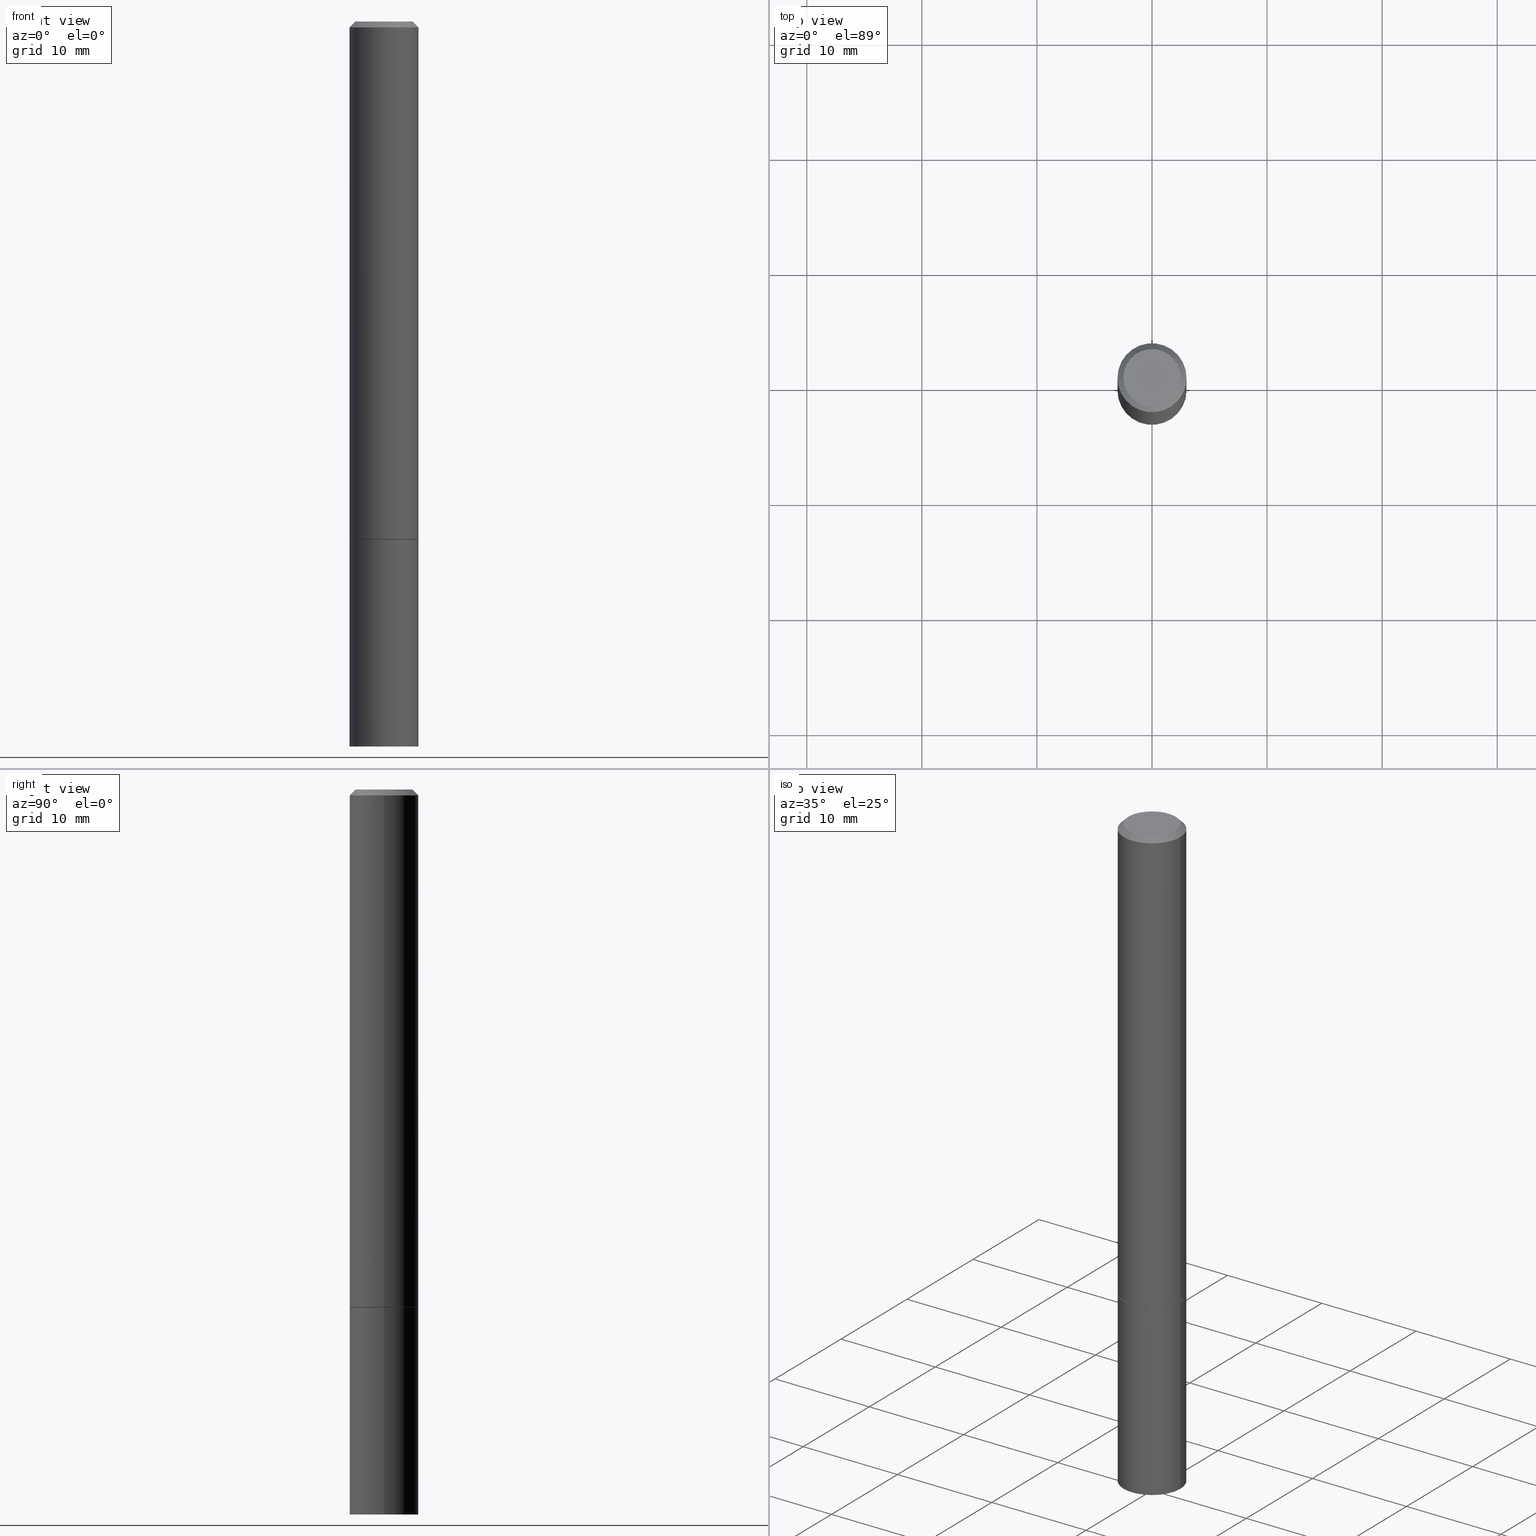
[diagram: canonical four-view strip — front | top / right | iso, engineering-drawing reading convention]
A machine part, canonical four-view strip (front | top / right | iso — engineering-drawing reading convention). The complete STEP part file that produces these views, byte-faithful:
ISO-10303-21;
HEADER;
FILE_DESCRIPTION (( 'STEP AP203' ),
    '1' );
FILE_NAME ('83056.STEP',
    '2024-02-29T22:25:37',
    ( '' ),
    ( '' ),
    'SwSTEP 2.0',
    'SolidWorks 2023',
    '' );
FILE_SCHEMA (( 'CONFIG_CONTROL_DESIGN' ));
ENDSEC;

DATA;
#1 = CARTESIAN_POINT ( 'NONE',  ( 4.332392537037588763E-29, -6.185508339894517569E-15, -1.771600000000000286 ) ) ;
#2 = DIRECTION ( 'NONE',  ( 1.000000000000000000, -6.982962677686265922E-15, 0.000000000000000000 ) ) ;
#3 = ADVANCED_FACE ( 'NONE', ( #36 ), #99, .T. ) ;
#4 = LINE ( 'NONE', #27, #299 ) ;
#5 =( NAMED_UNIT ( * ) SI_UNIT ( $, .STERADIAN. ) SOLID_ANGLE_UNIT ( ) );
#6 = ORIENTED_EDGE ( 'NONE', *, *, #168, .F. ) ;
#7 = CC_DESIGN_PERSON_AND_ORGANIZATION_ASSIGNMENT ( #298, #347, ( #330 ) ) ;
#8 = VECTOR ( 'NONE', #201, 39.37007874015748143 ) ;
#9 = PERSON_AND_ORGANIZATION ( #175, #283 ) ;
#10 = DESIGN_CONTEXT ( 'detailed design', #34, 'design' ) ;
#11 = ORIENTED_EDGE ( 'NONE', *, *, #253, .F. ) ;
#12 = FACE_OUTER_BOUND ( 'NONE', #295, .T. ) ;
#13 = APPROVAL_ROLE ( '' ) ;
#14 = ORIENTED_EDGE ( 'NONE', *, *, #303, .F. ) ;
#15 = EDGE_CURVE ( 'NONE', #124, #181, #101, .T. ) ;
#16 = ORIENTED_EDGE ( 'NONE', *, *, #249, .T. ) ;
#17 = MANIFOLD_SOLID_BREP ( 'Body-Move/Copy2[2]', #358 ) ;
#18 = DIRECTION ( 'NONE',  ( -2.445468806185136597E-29, 3.491481338843145583E-15, 1.000000000000000000 ) ) ;
#19 = DIRECTION ( 'NONE',  ( -2.445468806185136597E-29, 3.491481338843145583E-15, 1.000000000000000000 ) ) ;
#20 = CARTESIAN_POINT ( 'NONE',  ( 4.332392537037588763E-29, -6.185508339894517569E-15, -1.771600000000000286 ) ) ;
#21 = CIRCLE ( 'NONE', #190, 0.1180999999999997746 ) ;
#22 = SHAPE_DEFINITION_REPRESENTATION ( #357, #63 ) ;
#23 = LINE ( 'NONE', #61, #208 ) ;
#24 = CARTESIAN_POINT ( 'NONE',  ( 6.065496279980994755E-29, -8.659921164732655335E-15, -2.480300000000000171 ) ) ;
#25 = AXIS2_PLACEMENT_3D ( 'NONE', #1, #94, #235 ) ;
#26 = DIRECTION ( 'NONE',  ( -2.445468806185136597E-29, 3.491481338843145583E-15, 1.000000000000000000 ) ) ;
#27 = CARTESIAN_POINT ( 'NONE',  ( -0.1180999999999999966, 8.391509709326782957E-16, -5.809262341591043784E-30 ) ) ;
#28 = ORIENTED_EDGE ( 'NONE', *, *, #253, .T. ) ;
#29 = DIRECTION ( 'NONE',  ( -2.438088387897960049E-29, 3.491481338843145188E-15, 1.000000000000000000 ) ) ;
#30 = CARTESIAN_POINT ( 'NONE',  ( 4.890937612370281041E-31, -6.982962677686302702E-17, -0.02000000000000003511 ) ) ;
#31 =( CONVERSION_BASED_UNIT ( 'INCH', #129 ) LENGTH_UNIT ( ) NAMED_UNIT ( #57 ) );
#32 = ORIENTED_EDGE ( 'NONE', *, *, #187, .T. ) ;
#33 = EDGE_CURVE ( 'NONE', #349, #219, #81, .T. ) ;
#34 = APPLICATION_CONTEXT ( 'configuration controlled 3d designs of mechanical parts and assemblies' ) ;
#35 = SECURITY_CLASSIFICATION_LEVEL ( 'unclassified' ) ;
#36 = FACE_OUTER_BOUND ( 'NONE', #272, .T. ) ;
#37 = CIRCLE ( 'NONE', #73, 0.09809999999999981235 ) ;
#38 = VECTOR ( 'NONE', #205, 39.37007874015748143 ) ;
#39 = APPROVAL_STATUS ( 'not_yet_approved' ) ;
#40 = EDGE_LOOP ( 'NONE', ( #127, #351 ) ) ;
#41 = ORIENTED_EDGE ( 'NONE', *, *, #15, .T. ) ;
#42 = APPROVAL_STATUS ( 'not_yet_approved' ) ;
#43 = APPROVAL ( #71, 'UNSPECIFIED' ) ;
#44 = ORIENTED_EDGE ( 'NONE', *, *, #195, .F. ) ;
#45 = CIRCLE ( 'NONE', #25, 0.1180999999999999966 ) ;
#46 = CARTESIAN_POINT ( 'NONE',  ( 0.1180999999999999966, -7.010196232129265043E-15, -1.771600000000000286 ) ) ;
#47 = CIRCLE ( 'NONE', #98, 0.1180999999999999966 ) ;
#48 = DIRECTION ( 'NONE',  ( -1.000000000000000000, 6.982962677686265922E-15, -4.876176775795935793E-29 ) ) ;
#49 = PRODUCT_DEFINITION ( 'UNKNOWN', '', #133, #10 ) ;
#50 = ADVANCED_FACE ( 'NONE', ( #12 ), #333, .T. ) ;
#51 = PLANE ( 'NONE',  #290 ) ;
#52 = FACE_OUTER_BOUND ( 'NONE', #178, .T. ) ;
#53 = AXIS2_PLACEMENT_3D ( 'NONE', #166, #334, #137 ) ;
#54 = AXIS2_PLACEMENT_3D ( 'NONE', #259, #26, #319 ) ;
#55 = ADVANCED_FACE ( 'NONE', ( #277 ), #279, .T. ) ;
#56 = DIRECTION ( 'NONE',  ( -1.000000000000000000, 6.982962677686268288E-15, 0.000000000000000000 ) ) ;
#57 = DIMENSIONAL_EXPONENTS ( 1.000000000000000000, 0.000000000000000000, 0.000000000000000000, 0.000000000000000000, 0.000000000000000000, 0.000000000000000000, 0.000000000000000000 ) ;
#58 = CARTESIAN_POINT ( 'NONE',  ( -0.1180999999999997746, 7.548582654578835839E-16, -0.02000000000000003511 ) ) ;
#59 = AXIS2_PLACEMENT_3D ( 'NONE', #362, #18, #140 ) ;
#60 = CIRCLE ( 'NONE', #66, 0.1180999999999997746 ) ;
#61 = CARTESIAN_POINT ( 'NONE',  ( 0.1170999999999999958, -7.003213269451579029E-15, -1.771600000000000286 ) ) ;
#62 = CARTESIAN_POINT ( 'NONE',  ( 0.09809999999999981235, -7.765346469475326737E-16, -1.707404996039653601E-17 ) ) ;
#63 = ADVANCED_BREP_SHAPE_REPRESENTATION ( '83056', ( #264, #17, #88 ), #309 ) ;
#64 = DIRECTION ( 'NONE',  ( -2.445468806185136597E-29, 3.491481338843145583E-15, 1.000000000000000000 ) ) ;
#65 = ORIENTED_EDGE ( 'NONE', *, *, #316, .F. ) ;
#66 = AXIS2_PLACEMENT_3D ( 'NONE', #261, #64, #2 ) ;
#67 = PERSON_AND_ORGANIZATION_ROLE ( 'creator' ) ;
#68 = ADVANCED_FACE ( 'NONE', ( #52 ), #225, .T. ) ;
#69 = DATE_AND_TIME ( #306, #217 ) ;
#70 = ORIENTED_EDGE ( 'NONE', *, *, #338, .F. ) ;
#71 = APPROVAL_STATUS ( 'not_yet_approved' ) ;
#72 = CARTESIAN_POINT ( 'NONE',  ( 4.175405657340879278E-46, -5.961372681521788801E-32, -1.707404996040164512E-17 ) ) ;
#73 = AXIS2_PLACEMENT_3D ( 'NONE', #359, #221, #254 ) ;
#74 = PERSON_AND_ORGANIZATION_ROLE ( 'classification_officer' ) ;
#75 = UNCERTAINTY_MEASURE_WITH_UNIT (LENGTH_MEASURE( 1.000000000000000082E-05 ), #31, 'distance_accuracy_value', 'NONE');
#76 = ORIENTED_EDGE ( 'NONE', *, *, #249, .F. ) ;
#77 = EDGE_CURVE ( 'NONE', #289, #135, #87, .T. ) ;
#78 = DIRECTION ( 'NONE',  ( 1.000000000000000000, 0.000000000000000000, 0.000000000000000000 ) ) ;
#79 = ORIENTED_EDGE ( 'NONE', *, *, #33, .T. ) ;
#80 = EDGE_LOOP ( 'NONE', ( #109, #148 ) ) ;
#81 = CIRCLE ( 'NONE', #244, 0.09809999999999981235 ) ;
#82 = DIRECTION ( 'NONE',  ( 1.000000000000000000, -6.982962677686266711E-15, 4.876176775795936353E-29 ) ) ;
#83 = CARTESIAN_POINT ( 'NONE',  ( 0.000000000000000000, 0.000000000000000000, 0.000000000000000000 ) ) ;
#84 = DIRECTION ( 'NONE',  ( 2.438088387897960049E-29, -3.491481338843145188E-15, -1.000000000000000000 ) ) ;
#85 = ADVANCED_FACE ( 'NONE', ( #167 ), #312, .T. ) ;
#86 = DIRECTION ( 'NONE',  ( 2.438088387897960049E-29, -3.491481338843145188E-15, -1.000000000000000000 ) ) ;
#87 = CIRCLE ( 'NONE', #59, 0.1180999999999999966 ) ;
#88 = AXIS2_PLACEMENT_3D ( 'NONE', #344, #328, #78 ) ;
#89 = DIRECTION ( 'NONE',  ( -1.000000000000000000, 6.982962677686265922E-15, -4.876176775795935793E-29 ) ) ;
#90 = CARTESIAN_POINT ( 'NONE',  ( -0.1180999999999999966, -6.583563781380907467E-15, -2.480300000000000171 ) ) ;
#91 =( LENGTH_UNIT ( ) NAMED_UNIT ( * ) SI_UNIT ( $, .METRE. ) );
#92 = EDGE_CURVE ( 'NONE', #162, #132, #222, .T. ) ;
#93 = CONICAL_SURFACE ( 'NONE', #54, 0.1170999999999999958, 0.7853981633974141952 ) ;
#94 = DIRECTION ( 'NONE',  ( -2.445468806185136597E-29, 3.491481338843145583E-15, 1.000000000000000000 ) ) ;
#95 = CARTESIAN_POINT ( 'NONE',  ( 4.890937612370281041E-31, -6.982962677686302702E-17, -0.02000000000000003511 ) ) ;
#96 = LINE ( 'NONE', #58, #38 ) ;
#97 = AXIS2_PLACEMENT_3D ( 'NONE', #318, #29, #150 ) ;
#98 = AXIS2_PLACEMENT_3D ( 'NONE', #257, #151, #236 ) ;
#99 = CYLINDRICAL_SURFACE ( 'NONE', #343, 0.1180999999999999966 ) ;
#100 = DATE_TIME_ROLE ( 'creation_date' ) ;
#101 = LINE ( 'NONE', #214, #255 ) ;
#102 =( NAMED_UNIT ( * ) PLANE_ANGLE_UNIT ( ) SI_UNIT ( $, .RADIAN. ) );
#103 = ORIENTED_EDGE ( 'NONE', *, *, #292, .F. ) ;
#104 = EDGE_CURVE ( 'NONE', #135, #132, #251, .T. ) ;
#105 = AXIS2_PLACEMENT_3D ( 'NONE', #20, #310, #311 ) ;
#106 = CC_DESIGN_SECURITY_CLASSIFICATION ( #274, ( #133 ) ) ;
#107 = COORDINATED_UNIVERSAL_TIME_OFFSET ( 5, 0, .BEHIND. ) ;
#108 = EDGE_LOOP ( 'NONE', ( #188, #79 ) ) ;
#109 = ORIENTED_EDGE ( 'NONE', *, *, #195, .T. ) ;
#110 = CARTESIAN_POINT ( 'NONE',  ( 0.1180999999999999966, -7.006704750790422825E-15, -1.770600000000000174 ) ) ;
#111 = CARTESIAN_POINT ( 'NONE',  ( 0.000000000000000000, 0.000000000000000000, 0.000000000000000000 ) ) ;
#112 = DIRECTION ( 'NONE',  ( -2.445468806185136597E-29, 3.491481338843145583E-15, 1.000000000000000000 ) ) ;
#113 = DIRECTION ( 'NONE',  ( 1.000000000000000000, -6.982962677686264344E-15, 0.000000000000000000 ) ) ;
#114 = CC_DESIGN_PERSON_AND_ORGANIZATION_ASSIGNMENT ( #218, #67, ( #49 ) ) ;
#115 = LINE ( 'NONE', #313, #156 ) ;
#116 = VECTOR ( 'NONE', #278, 39.37007874015748143 ) ;
#117 = CARTESIAN_POINT ( 'NONE',  ( 4.890937612370281041E-31, -6.982962677686302702E-17, -0.02000000000000003511 ) ) ;
#118 = EDGE_CURVE ( 'NONE', #355, #220, #266, .T. ) ;
#119 = DIRECTION ( 'NONE',  ( -1.000000000000000000, 6.982962677686265922E-15, -4.876176775795935793E-29 ) ) ;
#120 = CARTESIAN_POINT ( 'NONE',  ( -0.1170999999999999958, -5.348164341971217978E-15, -1.771600000000000286 ) ) ;
#121 = CIRCLE ( 'NONE', #128, 0.1180999999999999966 ) ;
#122 = AXIS2_PLACEMENT_3D ( 'NONE', #117, #315, #126 ) ;
#123 = CARTESIAN_POINT ( 'NONE',  ( 6.850286386810214690E-16, 0.09809999999999981235, -3.510513443207127712E-16 ) ) ;
#124 = VERTEX_POINT ( 'NONE', #110 ) ;
#125 = EDGE_CURVE ( 'NONE', #219, #349, #37, .T. ) ;
#126 = DIRECTION ( 'NONE',  ( -1.000000000000000000, 6.982962677686268288E-15, 0.000000000000000000 ) ) ;
#127 = ORIENTED_EDGE ( 'NONE', *, *, #118, .F. ) ;
#128 = AXIS2_PLACEMENT_3D ( 'NONE', #174, #287, #203 ) ;
#129 = LENGTH_MEASURE_WITH_UNIT ( LENGTH_MEASURE( 0.02539999999999999897 ), #91 );
#130 = ORIENTED_EDGE ( 'NONE', *, *, #212, .F. ) ;
#131 = APPROVAL_DATE_TIME ( #321, #194 ) ;
#132 = VERTEX_POINT ( 'NONE', #46 ) ;
#133 = PRODUCT_DEFINITION_FORMATION_WITH_SPECIFIED_SOURCE ( 'ANY', '', #330, .NOT_KNOWN. ) ;
#134 = CALENDAR_DATE ( 2024, 29, 2 ) ;
#135 = VERTEX_POINT ( 'NONE', #165 ) ;
#136 = EDGE_CURVE ( 'NONE', #220, #355, #202, .T. ) ;
#137 = DIRECTION ( 'NONE',  ( 1.000000000000000000, -6.982962677686264344E-15, 0.000000000000000000 ) ) ;
#138 = AXIS2_PLACEMENT_3D ( 'NONE', #193, #19, #192 ) ;
#139 = LOCAL_TIME ( 17, 25, 37.00000000000000000, #158 ) ;
#140 = DIRECTION ( 'NONE',  ( 1.000000000000000000, -6.982962677686273021E-15, 0.000000000000000000 ) ) ;
#141 = APPROVAL_DATE_TIME ( #350, #43 ) ;
#142 = CARTESIAN_POINT ( 'NONE',  ( 4.332392537037588763E-29, -6.185508339894517569E-15, -1.771600000000000286 ) ) ;
#143 = ADVANCED_FACE ( 'NONE', ( #361 ), #282, .T. ) ;
#144 = PLANE ( 'NONE',  #301 ) ;
#145 = CLOSED_SHELL ( 'NONE', ( #85, #50, #157, #3 ) ) ;
#146 = APPROVAL_PERSON_ORGANIZATION ( #180, #348, #161 ) ;
#147 = CARTESIAN_POINT ( 'NONE',  ( -0.09809999999999981235, 7.199434520694525264E-16, -1.707404996040655701E-17 ) ) ;
#148 = ORIENTED_EDGE ( 'NONE', *, *, #92, .T. ) ;
#149 = DIRECTION ( 'NONE',  ( -2.445468806185136597E-29, 3.491481338843145583E-15, 1.000000000000000000 ) ) ;
#150 = DIRECTION ( 'NONE',  ( 1.000000000000000000, -6.982962677686265922E-15, 4.876176775795935793E-29 ) ) ;
#151 = DIRECTION ( 'NONE',  ( -2.445468806185136597E-29, 3.491481338843145583E-15, 1.000000000000000000 ) ) ;
#152 = APPLICATION_PROTOCOL_DEFINITION ( 'international standard', 'config_control_design', 1994, #228 ) ;
#153 = ORIENTED_EDGE ( 'NONE', *, *, #316, .T. ) ;
#154 = COORDINATED_UNIVERSAL_TIME_OFFSET ( 5, 0, .BEHIND. ) ;
#155 = CARTESIAN_POINT ( 'NONE',  ( 0.000000000000000000, 0.000000000000000000, 0.000000000000000000 ) ) ;
#156 = VECTOR ( 'NONE', #280, 39.37007874015748854 ) ;
#157 = ADVANCED_FACE ( 'NONE', ( #248 ), #51, .F. ) ;
#158 = COORDINATED_UNIVERSAL_TIME_OFFSET ( 5, 0, .BEHIND. ) ;
#159 = DIRECTION ( 'NONE',  ( -2.445468806185136597E-29, 3.491481338843145583E-15, 1.000000000000000000 ) ) ;
#160 = ORIENTED_EDGE ( 'NONE', *, *, #104, .F. ) ;
#161 = APPROVAL_ROLE ( '' ) ;
#162 = VERTEX_POINT ( 'NONE', #198 ) ;
#163 = AXIS2_PLACEMENT_3D ( 'NONE', #336, #84, #89 ) ;
#164 = CONICAL_SURFACE ( 'NONE', #122, 0.1180999999999997746, 0.7853981633974468357 ) ;
#165 = CARTESIAN_POINT ( 'NONE',  ( 0.1180999999999999966, -9.484609056967403598E-15, -2.480300000000000171 ) ) ;
#166 = CARTESIAN_POINT ( 'NONE',  ( 4.332392537037588763E-29, -6.185508339894517569E-15, -1.771600000000000286 ) ) ;
#167 = FACE_OUTER_BOUND ( 'NONE', #231, .T. ) ;
#168 = EDGE_CURVE ( 'NONE', #220, #327, #115, .T. ) ;
#169 = CC_DESIGN_APPROVAL ( #43, ( #274 ) ) ;
#170 = CARTESIAN_POINT ( 'NONE',  ( 0.1180999999999999966, -8.246878922347480654E-16, 5.758764772215000440E-30 ) ) ;
#171 = DIRECTION ( 'NONE',  ( -2.445468806185136597E-29, 3.491481338843145583E-15, 1.000000000000000000 ) ) ;
#172 = FACE_OUTER_BOUND ( 'NONE', #216, .T. ) ;
#173 = CARTESIAN_POINT ( 'NONE',  ( 0.1170999999999999958, -7.003213269451579029E-15, -1.771600000000000286 ) ) ;
#174 = CARTESIAN_POINT ( 'NONE',  ( 4.329947068231403160E-29, -6.182016858555674562E-15, -1.770600000000000174 ) ) ;
#175 = PERSON ( 'UNSPECIFIED', 'UNSPECIFIED', 'UNSPECIFIED', ('UNSPECIFIED'), ('UNSPECIFIED'), ('UNSPECIFIED') ) ;
#176 = FACE_OUTER_BOUND ( 'NONE', #346, .T. ) ;
#177 = CARTESIAN_POINT ( 'NONE',  ( 0.1180999999999997746, -8.800544403136792597E-16, -0.02000000000000003511 ) ) ;
#178 = EDGE_LOOP ( 'NONE', ( #103, #153, #41, #14 ) ) ;
#179 = PERSON_AND_ORGANIZATION_ROLE ( 'design_supplier' ) ;
#180 = PERSON_AND_ORGANIZATION ( #175, #283 ) ;
#181 = VERTEX_POINT ( 'NONE', #227 ) ;
#182 = EDGE_CURVE ( 'NONE', #355, #124, #23, .T. ) ;
#183 = ORIENTED_EDGE ( 'NONE', *, *, #168, .T. ) ;
#184 = CALENDAR_DATE ( 2024, 29, 2 ) ;
#185 = ORIENTED_EDGE ( 'NONE', *, *, #136, .T. ) ;
#186 = PERSON_AND_ORGANIZATION ( #175, #283 ) ;
#187 = EDGE_CURVE ( 'NONE', #124, #327, #121, .T. ) ;
#188 = ORIENTED_EDGE ( 'NONE', *, *, #125, .T. ) ;
#189 = ORIENTED_EDGE ( 'NONE', *, *, #212, .T. ) ;
#190 = AXIS2_PLACEMENT_3D ( 'NONE', #30, #284, #206 ) ;
#191 = LOCAL_TIME ( 17, 25, 37.00000000000000000, #269 ) ;
#192 = DIRECTION ( 'NONE',  ( 1.000000000000000000, -6.982962677686265133E-15, 0.000000000000000000 ) ) ;
#193 = CARTESIAN_POINT ( 'NONE',  ( 4.332392537037588763E-29, -6.185508339894517569E-15, -1.771600000000000286 ) ) ;
#194 = APPROVAL ( #42, 'UNSPECIFIED' ) ;
#195 = EDGE_CURVE ( 'NONE', #132, #162, #45, .T. ) ;
#196 = DIRECTION ( 'NONE',  ( 1.000000000000000000, -6.982962677686266711E-15, 4.876176775795935232E-29 ) ) ;
#197 = AXIS2_PLACEMENT_3D ( 'NONE', #83, #332, #82 ) ;
#198 = CARTESIAN_POINT ( 'NONE',  ( -0.1180999999999999966, -6.583563781380907467E-15, -1.771600000000000286 ) ) ;
#199 = DIRECTION ( 'NONE',  ( -2.445468806185136597E-29, 3.491481338843145583E-15, 1.000000000000000000 ) ) ;
#200 = EDGE_CURVE ( 'NONE', #349, #181, #263, .T. ) ;
#201 = DIRECTION ( 'NONE',  ( -2.445468806185136877E-29, 3.491481338843145188E-15, 1.000000000000000000 ) ) ;
#202 = CIRCLE ( 'NONE', #53, 0.1170999999999999958 ) ;
#203 = DIRECTION ( 'NONE',  ( 1.000000000000000000, -6.982962677686265133E-15, 0.000000000000000000 ) ) ;
#204 = ORIENTED_EDGE ( 'NONE', *, *, #118, .T. ) ;
#205 = DIRECTION ( 'NONE',  ( -0.7071067811865464625, 2.468850131082245622E-15, -0.7071067811865485719 ) ) ;
#206 = DIRECTION ( 'NONE',  ( 1.000000000000000000, -6.982962677686265922E-15, 0.000000000000000000 ) ) ;
#207 = ORIENTED_EDGE ( 'NONE', *, *, #338, .T. ) ;
#208 = VECTOR ( 'NONE', #337, 39.37007874015748854 ) ;
#209 = LOCAL_TIME ( 17, 25, 37.00000000000000000, #239 ) ;
#210 = APPLICATION_PROTOCOL_DEFINITION ( 'international standard', 'config_control_design', 1994, #34 ) ;
#211 = ORIENTED_EDGE ( 'NONE', *, *, #77, .F. ) ;
#212 = EDGE_CURVE ( 'NONE', #289, #162, #4, .T. ) ;
#213 = DATE_TIME_ROLE ( 'classification_date' ) ;
#214 = CARTESIAN_POINT ( 'NONE',  ( 0.1180999999999998995, -8.246878922347473751E-16, 5.758764772214994835E-30 ) ) ;
#215 = DATE_AND_TIME ( #184, #191 ) ;
#216 = EDGE_LOOP ( 'NONE', ( #204, #183, #308, #305 ) ) ;
#217 = LOCAL_TIME ( 17, 25, 37.00000000000000000, #107 ) ;
#218 = PERSON_AND_ORGANIZATION ( #175, #283 ) ;
#219 = VERTEX_POINT ( 'NONE', #147 ) ;
#220 = VERTEX_POINT ( 'NONE', #120 ) ;
#221 = DIRECTION ( 'NONE',  ( -2.445468806185136597E-29, 3.491481338843145583E-15, 1.000000000000000000 ) ) ;
#222 = CIRCLE ( 'NONE', #138, 0.1180999999999999966 ) ;
#223 = AXIS2_PLACEMENT_3D ( 'NONE', #95, #314, #56 ) ;
#224 = PRODUCT_RELATED_PRODUCT_CATEGORY ( 'detail', '', ( #330 ) ) ;
#225 = CYLINDRICAL_SURFACE ( 'NONE', #260, 0.1180999999999998995 ) ;
#226 = ADVANCED_FACE ( 'NONE', ( #233 ), #317, .F. ) ;
#227 = CARTESIAN_POINT ( 'NONE',  ( 0.1180999999999997746, -8.800544403136792597E-16, -0.02000000000000003511 ) ) ;
#228 = APPLICATION_CONTEXT ( 'configuration controlled 3d designs of mechanical parts and assemblies' ) ;
#229 = CC_DESIGN_PERSON_AND_ORGANIZATION_ASSIGNMENT ( #354, #304, ( #133 ) ) ;
#230 = LINE ( 'NONE', #340, #8 ) ;
#231 = EDGE_LOOP ( 'NONE', ( #16, #189, #44, #160 ) ) ;
#232 = AXIS2_PLACEMENT_3D ( 'NONE', #24, #149, #256 ) ;
#233 = FACE_OUTER_BOUND ( 'NONE', #40, .T. ) ;
#234 = CC_DESIGN_PERSON_AND_ORGANIZATION_ASSIGNMENT ( #9, #74, ( #274 ) ) ;
#235 = DIRECTION ( 'NONE',  ( 1.000000000000000000, -6.982962677686265133E-15, 0.000000000000000000 ) ) ;
#236 = DIRECTION ( 'NONE',  ( 1.000000000000000000, -6.982962677686265133E-15, 0.000000000000000000 ) ) ;
#237 = ORIENTED_EDGE ( 'NONE', *, *, #92, .F. ) ;
#238 = CONICAL_SURFACE ( 'NONE', #223, 0.1180999999999997746, 0.7853981633974468357 ) ;
#239 = COORDINATED_UNIVERSAL_TIME_OFFSET ( 5, 0, .BEHIND. ) ;
#240 = VERTEX_POINT ( 'NONE', #365 ) ;
#241 = CALENDAR_DATE ( 2024, 29, 2 ) ;
#242 = EDGE_LOOP ( 'NONE', ( #32, #300, #11, #297 ) ) ;
#243 = ORIENTED_EDGE ( 'NONE', *, *, #182, .T. ) ;
#244 = AXIS2_PLACEMENT_3D ( 'NONE', #72, #159, #268 ) ;
#245 = CC_DESIGN_APPROVAL ( #194, ( #49 ) ) ;
#246 = DATE_AND_TIME ( #271, #345 ) ;
#247 = ORIENTED_EDGE ( 'NONE', *, *, #303, .T. ) ;
#248 = FACE_OUTER_BOUND ( 'NONE', #80, .T. ) ;
#249 = EDGE_CURVE ( 'NONE', #135, #289, #339, .T. ) ;
#250 = VECTOR ( 'NONE', #291, 39.37007874015748143 ) ;
#251 = LINE ( 'NONE', #170, #116 ) ;
#252 = CARTESIAN_POINT ( 'NONE',  ( 0.000000000000000000, 0.000000000000000000, 0.000000000000000000 ) ) ;
#253 = EDGE_CURVE ( 'NONE', #181, #240, #21, .T. ) ;
#254 = DIRECTION ( 'NONE',  ( 1.000000000000000000, -6.982962677686267499E-15, 4.875229006325906821E-29 ) ) ;
#255 = VECTOR ( 'NONE', #325, 39.37007874015748143 ) ;
#256 = DIRECTION ( 'NONE',  ( 1.000000000000000000, -6.982962677686273021E-15, 0.000000000000000000 ) ) ;
#257 = CARTESIAN_POINT ( 'NONE',  ( 4.329947068231403160E-29, -6.182016858555674562E-15, -1.770600000000000174 ) ) ;
#258 = ORIENTED_EDGE ( 'NONE', *, *, #104, .T. ) ;
#259 = CARTESIAN_POINT ( 'NONE',  ( 4.332392537037588763E-29, -6.185508339894517569E-15, -1.771600000000000286 ) ) ;
#260 = AXIS2_PLACEMENT_3D ( 'NONE', #252, #112, #356 ) ;
#261 = CARTESIAN_POINT ( 'NONE',  ( 4.890937612370281041E-31, -6.982962677686302702E-17, -0.02000000000000003511 ) ) ;
#262 = APPROVAL_PERSON_ORGANIZATION ( #324, #43, #13 ) ;
#263 = LINE ( 'NONE', #177, #250 ) ;
#264 = MANIFOLD_SOLID_BREP ( 'Body-Move/Copy2[1]', #145 ) ;
#265 = ORIENTED_EDGE ( 'NONE', *, *, #200, .T. ) ;
#266 = CIRCLE ( 'NONE', #273, 0.1170999999999999958 ) ;
#267 = DIRECTION ( 'NONE',  ( 1.000000000000000000, -6.982962677686266711E-15, 4.876176775795936353E-29 ) ) ;
#268 = DIRECTION ( 'NONE',  ( 1.000000000000000000, -6.982962677686267499E-15, 4.875229006325906821E-29 ) ) ;
#269 = COORDINATED_UNIVERSAL_TIME_OFFSET ( 5, 0, .BEHIND. ) ;
#270 = EDGE_LOOP ( 'NONE', ( #331, #265, #28, #70 ) ) ;
#271 = CALENDAR_DATE ( 2024, 29, 2 ) ;
#272 = EDGE_LOOP ( 'NONE', ( #130, #320, #258, #237 ) ) ;
#273 = AXIS2_PLACEMENT_3D ( 'NONE', #142, #171, #113 ) ;
#274 = SECURITY_CLASSIFICATION ( '', '', #35 ) ;
#275 = CARTESIAN_POINT ( 'NONE',  ( 8.246878922347912555E-16, 0.1180999999999938210, -1.771600000000000952 ) ) ;
#276 = ADVANCED_FACE ( 'NONE', ( #341 ), #164, .T. ) ;
#277 = FACE_OUTER_BOUND ( 'NONE', #242, .T. ) ;
#278 = DIRECTION ( 'NONE',  ( -2.445468806185136877E-29, 3.491481338843145188E-15, 1.000000000000000000 ) ) ;
#279 = CYLINDRICAL_SURFACE ( 'NONE', #352, 0.1180999999999998995 ) ;
#280 = DIRECTION ( 'NONE',  ( -0.7071067811865232589, 7.493145998870265808E-15, 0.7071067811865715536 ) ) ;
#281 = FACE_OUTER_BOUND ( 'NONE', #108, .T. ) ;
#282 = CONICAL_SURFACE ( 'NONE', #105, 0.1170999999999999958, 0.7853981633974141952 ) ;
#283 = ORGANIZATION ( 'UNSPECIFIED', 'UNSPECIFIED', '' ) ;
#284 = DIRECTION ( 'NONE',  ( -2.445468806185136597E-29, 3.491481338843145583E-15, 1.000000000000000000 ) ) ;
#285 = CC_DESIGN_DATE_AND_TIME_ASSIGNMENT ( #215, #213, ( #274 ) ) ;
#286 = ADVANCED_FACE ( 'NONE', ( #172 ), #93, .T. ) ;
#287 = DIRECTION ( 'NONE',  ( -2.445468806185136597E-29, 3.491481338843145583E-15, 1.000000000000000000 ) ) ;
#288 = DIRECTION ( 'NONE',  ( -2.445468806185136877E-29, 3.491481338843145188E-15, 1.000000000000000000 ) ) ;
#289 = VERTEX_POINT ( 'NONE', #90 ) ;
#290 = AXIS2_PLACEMENT_3D ( 'NONE', #275, #86, #48 ) ;
#291 = DIRECTION ( 'NONE',  ( 0.7071067811865464625, -7.319954787623252890E-15, -0.7071067811865485719 ) ) ;
#292 = EDGE_CURVE ( 'NONE', #327, #240, #230, .T. ) ;
#293 = PERSON_AND_ORGANIZATION ( #175, #283 ) ;
#294 = CC_DESIGN_PERSON_AND_ORGANIZATION_ASSIGNMENT ( #293, #179, ( #133 ) ) ;
#295 = EDGE_LOOP ( 'NONE', ( #76, #211 ) ) ;
#296 = APPROVAL_DATE_TIME ( #246, #348 ) ;
#297 = ORIENTED_EDGE ( 'NONE', *, *, #15, .F. ) ;
#298 = PERSON_AND_ORGANIZATION ( #175, #283 ) ;
#299 = VECTOR ( 'NONE', #288, 39.37007874015748143 ) ;
#300 = ORIENTED_EDGE ( 'NONE', *, *, #292, .T. ) ;
#301 = AXIS2_PLACEMENT_3D ( 'NONE', #123, #366, #119 ) ;
#302 = CC_DESIGN_DATE_AND_TIME_ASSIGNMENT ( #69, #100, ( #49 ) ) ;
#303 = EDGE_CURVE ( 'NONE', #240, #181, #60, .T. ) ;
#304 = PERSON_AND_ORGANIZATION_ROLE ( 'creator' ) ;
#305 = ORIENTED_EDGE ( 'NONE', *, *, #182, .F. ) ;
#306 = CALENDAR_DATE ( 2024, 29, 2 ) ;
#307 = EDGE_LOOP ( 'NONE', ( #6, #185, #243, #65 ) ) ;
#308 = ORIENTED_EDGE ( 'NONE', *, *, #187, .F. ) ;
#309 =( GEOMETRIC_REPRESENTATION_CONTEXT ( 3 ) GLOBAL_UNCERTAINTY_ASSIGNED_CONTEXT ( ( #75 ) ) GLOBAL_UNIT_ASSIGNED_CONTEXT ( ( #31, #102, #5 ) ) REPRESENTATION_CONTEXT ( 'NONE', 'WORKASPACE' ) );
#310 = DIRECTION ( 'NONE',  ( -2.445468806185136597E-29, 3.491481338843145583E-15, 1.000000000000000000 ) ) ;
#311 = DIRECTION ( 'NONE',  ( 1.000000000000000000, -6.982962677686264344E-15, 0.000000000000000000 ) ) ;
#312 = CYLINDRICAL_SURFACE ( 'NONE', #197, 0.1180999999999999966 ) ;
#313 = CARTESIAN_POINT ( 'NONE',  ( -0.1170999999999999958, -5.353462796319440381E-15, -1.771600000000000286 ) ) ;
#314 = DIRECTION ( 'NONE',  ( 2.445468806185136597E-29, -3.491481338843145583E-15, -1.000000000000000000 ) ) ;
#315 = DIRECTION ( 'NONE',  ( 2.445468806185136597E-29, -3.491481338843145583E-15, -1.000000000000000000 ) ) ;
#316 = EDGE_CURVE ( 'NONE', #327, #124, #47, .T. ) ;
#317 = PLANE ( 'NONE',  #97 ) ;
#318 = CARTESIAN_POINT ( 'NONE',  ( 4.332392537037588763E-29, -6.185508339894517569E-15, -1.771600000000000286 ) ) ;
#319 = DIRECTION ( 'NONE',  ( 1.000000000000000000, -6.982962677686264344E-15, 0.000000000000000000 ) ) ;
#320 = ORIENTED_EDGE ( 'NONE', *, *, #77, .T. ) ;
#321 = DATE_AND_TIME ( #134, #209 ) ;
#322 = APPROVAL_ROLE ( '' ) ;
#323 = ORIENTED_EDGE ( 'NONE', *, *, #125, .F. ) ;
#324 = PERSON_AND_ORGANIZATION ( #175, #283 ) ;
#325 = DIRECTION ( 'NONE',  ( -2.445468806185136877E-29, 3.491481338843145188E-15, 1.000000000000000000 ) ) ;
#326 = MECHANICAL_CONTEXT ( 'NONE', #228, 'mechanical' ) ;
#327 = VERTEX_POINT ( 'NONE', #342 ) ;
#328 = DIRECTION ( 'NONE',  ( 0.000000000000000000, 0.000000000000000000, 1.000000000000000000 ) ) ;
#329 = DIRECTION ( 'NONE',  ( -2.445468806185136597E-29, 3.491481338843145583E-15, 1.000000000000000000 ) ) ;
#330 = PRODUCT ( '83056', '83056', '', ( #326 ) ) ;
#331 = ORIENTED_EDGE ( 'NONE', *, *, #33, .F. ) ;
#332 = DIRECTION ( 'NONE',  ( -2.445468806185136597E-29, 3.491481338843145583E-15, 1.000000000000000000 ) ) ;
#333 = PLANE ( 'NONE',  #163 ) ;
#334 = DIRECTION ( 'NONE',  ( -2.445468806185136597E-29, 3.491481338843145583E-15, 1.000000000000000000 ) ) ;
#335 = CC_DESIGN_APPROVAL ( #348, ( #133 ) ) ;
#336 = CARTESIAN_POINT ( 'NONE',  ( 8.246878922348086105E-16, 0.1180999999999913369, -2.480300000000001059 ) ) ;
#337 = DIRECTION ( 'NONE',  ( 0.7071067811865232589, -2.468850131082003836E-15, 0.7071067811865715536 ) ) ;
#338 = EDGE_CURVE ( 'NONE', #219, #240, #96, .T. ) ;
#339 = CIRCLE ( 'NONE', #232, 0.1180999999999999966 ) ;
#340 = CARTESIAN_POINT ( 'NONE',  ( -0.1180999999999998995, 8.391509709326776054E-16, -5.809262341591038879E-30 ) ) ;
#341 = FACE_OUTER_BOUND ( 'NONE', #270, .T. ) ;
#342 = CARTESIAN_POINT ( 'NONE',  ( -0.1180999999999999966, -2.286772271733587972E-15, -1.770600000000000174 ) ) ;
#343 = AXIS2_PLACEMENT_3D ( 'NONE', #155, #329, #267 ) ;
#344 = CARTESIAN_POINT ( 'NONE',  ( 0.000000000000000000, 0.000000000000000000, 0.000000000000000000 ) ) ;
#345 = LOCAL_TIME ( 17, 25, 37.00000000000000000, #154 ) ;
#346 = EDGE_LOOP ( 'NONE', ( #353, #323, #207, #247 ) ) ;
#347 = PERSON_AND_ORGANIZATION_ROLE ( 'design_owner' ) ;
#348 = APPROVAL ( #39, 'UNSPECIFIED' ) ;
#349 = VERTEX_POINT ( 'NONE', #62 ) ;
#350 = DATE_AND_TIME ( #241, #139 ) ;
#351 = ORIENTED_EDGE ( 'NONE', *, *, #136, .F. ) ;
#352 = AXIS2_PLACEMENT_3D ( 'NONE', #111, #199, #196 ) ;
#353 = ORIENTED_EDGE ( 'NONE', *, *, #200, .F. ) ;
#354 = PERSON_AND_ORGANIZATION ( #175, #283 ) ;
#355 = VERTEX_POINT ( 'NONE', #173 ) ;
#356 = DIRECTION ( 'NONE',  ( 1.000000000000000000, -6.982962677686266711E-15, 4.876176775795935232E-29 ) ) ;
#357 = PRODUCT_DEFINITION_SHAPE ( 'NONE', 'NONE',  #49 ) ;
#358 = CLOSED_SHELL ( 'NONE', ( #286, #55, #276, #360, #68, #143, #226, #364 ) ) ;
#359 = CARTESIAN_POINT ( 'NONE',  ( 4.175405657340879278E-46, -5.961372681521788801E-32, -1.707404996040164512E-17 ) ) ;
#360 = ADVANCED_FACE ( 'NONE', ( #176 ), #238, .T. ) ;
#361 = FACE_OUTER_BOUND ( 'NONE', #307, .T. ) ;
#362 = CARTESIAN_POINT ( 'NONE',  ( 6.065496279980994755E-29, -8.659921164732655335E-15, -2.480300000000000171 ) ) ;
#363 = APPROVAL_PERSON_ORGANIZATION ( #186, #194, #322 ) ;
#364 = ADVANCED_FACE ( 'NONE', ( #281 ), #144, .F. ) ;
#365 = CARTESIAN_POINT ( 'NONE',  ( -0.1180999999999997746, 7.548582654578835839E-16, -0.02000000000000003511 ) ) ;
#366 = DIRECTION ( 'NONE',  ( 2.438088387897960049E-29, -3.491481338843145188E-15, -1.000000000000000000 ) ) ;
ENDSEC;
END-ISO-10303-21;
